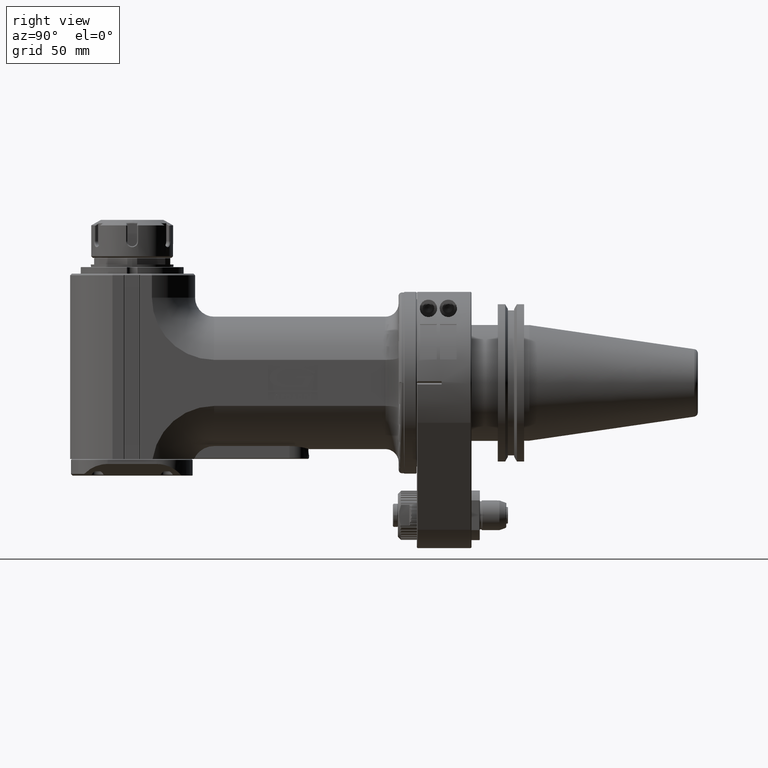
[diagram: clean part render]
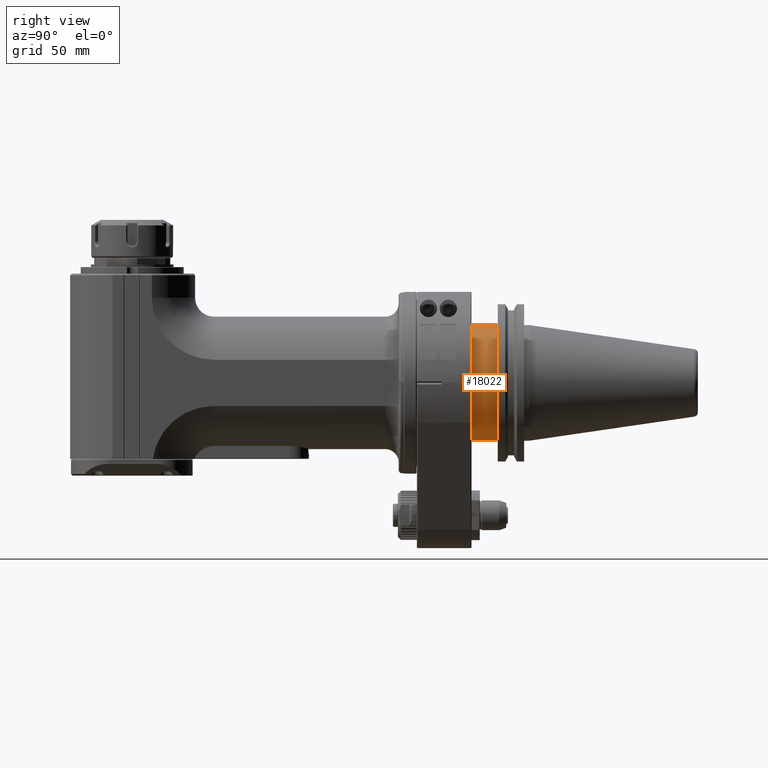
[diagram: same view with one face highlighted and labeled with its STEP entity id]
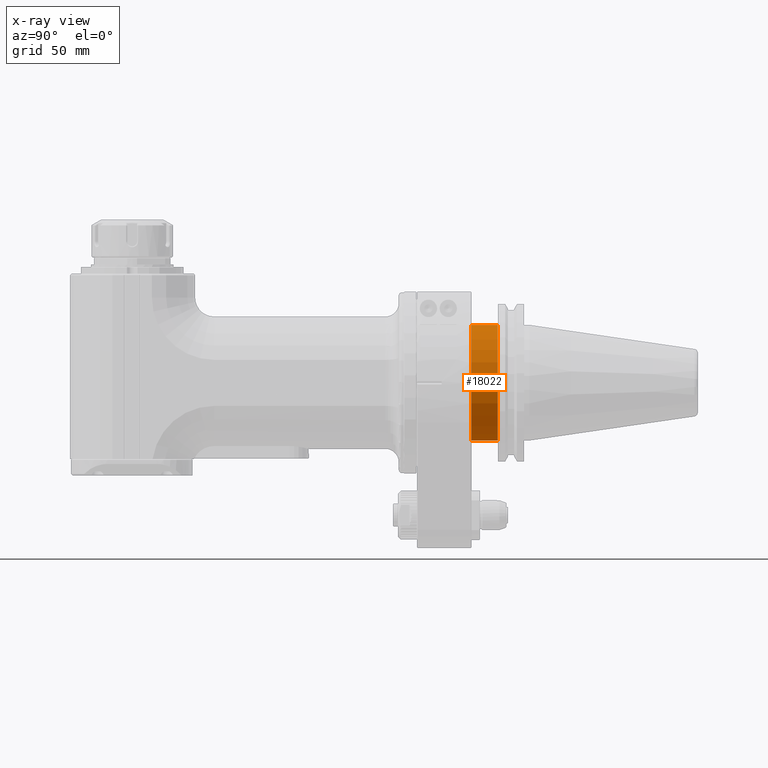
[diagram: x-ray of the same camera — body ghosted, the highlighted face saturated]
A machine part, right view. The second image highlights one B-rep face of the part: STEP entity #18022.
The next image is the same camera in x-ray: the body ghosted, the highlighted face saturated — about 0% of this face is hidden behind the body in this view.
In plain terms, the highlighted cylindrical surface (bore or boss wall) has radius 35 mm, axis along (0, -1, 0).
Its self-contained STEP definition (entity closure, byte-faithful):
#1212=CIRCLE('',#19466,35.);
#1225=CIRCLE('',#19497,35.);
#1771=CYLINDRICAL_SURFACE('',#19496,35.);
#2302=FACE_OUTER_BOUND('',#3379,.T.);
#3379=EDGE_LOOP('',(#13875,#13876,#13877,#13878));
#4756=LINE('',#29063,#6250);
#6250=VECTOR('',#22846,35.);
#7803=VERTEX_POINT('',#28993);
#7816=VERTEX_POINT('',#29061);
#9967=EDGE_CURVE('',#7803,#7803,#1212,.T.);
#9996=EDGE_CURVE('',#7816,#7816,#1225,.T.);
#9997=EDGE_CURVE('',#7816,#7803,#4756,.T.);
#13875=ORIENTED_EDGE('',*,*,#9996,.T.);
#13876=ORIENTED_EDGE('',*,*,#9997,.T.);
#13877=ORIENTED_EDGE('',*,*,#9967,.T.);
#13878=ORIENTED_EDGE('',*,*,#9997,.F.);
#18022=ADVANCED_FACE('',(#2302),#1771,.T.);
#19466=AXIS2_PLACEMENT_3D('',#28994,#22770,#22771);
#19496=AXIS2_PLACEMENT_3D('',#29060,#22842,#22843);
#19497=AXIS2_PLACEMENT_3D('',#29062,#22844,#22845);
#22770=DIRECTION('center_axis',(0.,-1.,0.));
#22771=DIRECTION('ref_axis',(0.,0.,1.));
#22842=DIRECTION('center_axis',(0.,-1.,0.));
#22843=DIRECTION('ref_axis',(0.,0.,1.));
#22844=DIRECTION('center_axis',(0.,1.,0.));
#22845=DIRECTION('ref_axis',(0.,0.,-1.));
#22846=DIRECTION('',(0.,1.,0.));
#28993=CARTESIAN_POINT('',(4.28626379701574E-15,48.9,-35.));
#28994=CARTESIAN_POINT('Origin',(0.,48.9,-2.65337952111E-15));
#29060=CARTESIAN_POINT('Origin',(0.,49.695,-2.65337952111E-15));
#29061=CARTESIAN_POINT('',(4.28626379701574E-15,33.,-35.));
#29062=CARTESIAN_POINT('Origin',(0.,33.,-2.65337952111E-15));
#29063=CARTESIAN_POINT('',(4.28626379701574E-15,49.695,-35.));